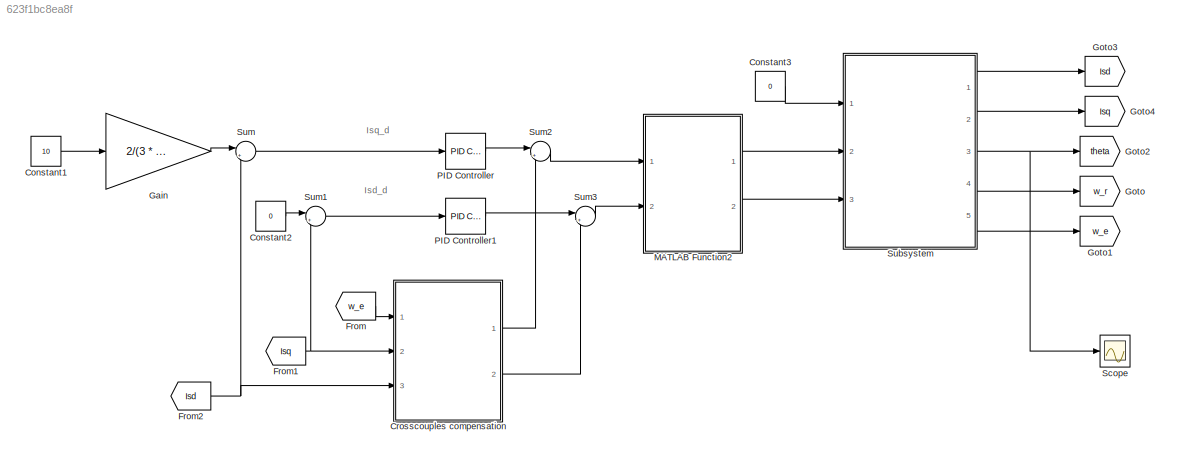
MODEL slx_623f1bc8ea8f
KIND model
CONFIG AbsTol = auto
CONFIG EnableMultiTasking = off
CONFIG FixedStep = auto
CONFIG MaxStep = auto
CONFIG MinStep = auto
CONFIG RelTol = 1e-3
CONFIG SampleTimeConstraint = Unconstrained
CONFIG SolverName = VariableStepAuto
CONFIG StartTime = 0.0
CONFIG StopTime = 100
BLOCK [Constant] Constant1
  Value = 10
BLOCK [Constant] Constant2
  Value = 0
BLOCK [Constant] Constant3
  Value = 0
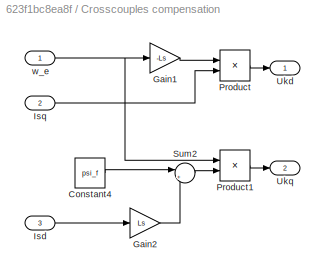
BLOCK [SubSystem] Crosscouples compensation
  Ports = [3, 2]
  RequestExecContextInheritance = off
BLOCK [Constant] Crosscouples compensation/Constant4
  Value = psi_f
BLOCK [Gain] Crosscouples compensation/Gain1
  Gain = -Ls
BLOCK [Gain] Crosscouples compensation/Gain2
  Gain = Ls
BLOCK [Inport] Crosscouples compensation/Isd
  Port = 3
BLOCK [Inport] Crosscouples compensation/Isq
  Port = 2
BLOCK [Product] Crosscouples compensation/Product
  Ports = [2, 1]
BLOCK [Product] Crosscouples compensation/Product1
  Ports = [2, 1]
BLOCK [Sum] Crosscouples compensation/Sum2
  Inputs = |++
  Ports = [2, 1]
BLOCK [Outport] Crosscouples compensation/Ukd
BLOCK [Outport] Crosscouples compensation/Ukq
  Port = 2
BLOCK [Inport] Crosscouples compensation/w_e
BLOCK [From] From
  GotoTag = w_e
BLOCK [From] From1
  GotoTag = Isq
BLOCK [From] From2
  GotoTag = Isd
BLOCK [Gain] Gain
  Gain = 2/(3 * Z * psi_f)
BLOCK [Goto] Goto
  GotoTag = w_r
BLOCK [Goto] Goto1
  GotoTag = w_e
BLOCK [Goto] Goto2
  GotoTag = theta
BLOCK [Goto] Goto3
  GotoTag = Isd
BLOCK [Goto] Goto4
  GotoTag = Isq
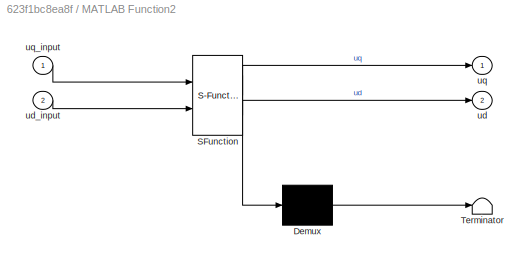
BLOCK [SubSystem] MATLAB Function2
  ErrorFcn = Stateflow.Translate.translate
  PermitHierarchicalResolution = ExplicitOnly
  Ports = [2, 2]
  RequestExecContextInheritance = off
  SFBlockType = MATLAB Function
  TreatAsAtomicUnit = on
BLOCK [Demux] MATLAB Function2/ Demux 
  Outputs = 1
  Ports = [1, 1]
BLOCK [S-Function] MATLAB Function2/ SFunction 
  EnableBusSupport = on
  FunctionName = sf_sfun
  Parameters = U_max
  PortCounts = [2 3]
  Ports = [2, 3]
  SFcnIsStateOwnerBlock = off
  SFunctionDeploymentMode = off
  Tag = Stateflow S-Function 3
BLOCK [Terminator] MATLAB Function2/ Terminator 
BLOCK [Outport] MATLAB Function2/ud
  Port = 2
BLOCK [Inport] MATLAB Function2/ud_input
  Port = 2
BLOCK [Outport] MATLAB Function2/uq
BLOCK [Inport] MATLAB Function2/uq_input
BLOCK [Reference] PID Controller  REF=pid_lib/PID Controller
  Ports = [1, 1]
  SourceBlock = pid_lib/PID Controller
  SourceProductBaseCode = SL
  SourceType = PID 1dof
BLOCK [Reference] PID Controller1  REF=pid_lib/PID Controller
  Ports = [1, 1]
  SourceBlock = pid_lib/PID Controller
  SourceProductBaseCode = SL
  SourceType = PID 1dof
BLOCK [Scope] Scope
  Floating = off
  NumInputPorts = 1
  Ports = [1]
  ScopeSpecificationString = Simulink.scopes.TimeScopeBlockCfg('CurrentConfiguration', extmgr.ConfigurationSet(extmgr.Configuration('Core','General UI',true),extmgr.Configuration('Core','Source UI',true),extmgr.Configuration('Sources','WiredSimulink',true,'DataLoggingVariableName','ScopeData4'),extmgr.Configuration('Visuals','Time Domain',true,'SerializedDisplays',{struct('MinYLimReal','-3605.1294','MaxYLimReal','32446.16464'...<+1419ch>
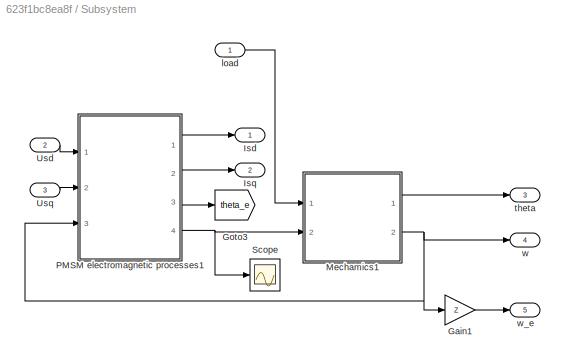
BLOCK [SubSystem] Subsystem
  Ports = [3, 5]
  RequestExecContextInheritance = off
BLOCK [Gain] Subsystem/Gain1
  Gain = Z
BLOCK [Goto] Subsystem/Goto3
  GotoTag = theta_e
BLOCK [Outport] Subsystem/Isd
BLOCK [Outport] Subsystem/Isq
  Port = 2
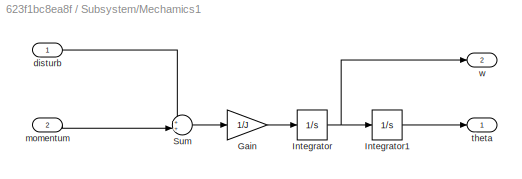
BLOCK [SubSystem] Subsystem/Mechamics1
  Ports = [2, 2]
  RequestExecContextInheritance = off
BLOCK [Gain] Subsystem/Mechamics1/Gain
  Gain = 1/J
BLOCK [Integrator] Subsystem/Mechamics1/Integrator
  Ports = [1, 1]
BLOCK [Integrator] Subsystem/Mechamics1/Integrator1
  Ports = [1, 1]
BLOCK [Sum] Subsystem/Mechamics1/Sum
  Inputs = ++|
  Ports = [2, 1]
BLOCK [Inport] Subsystem/Mechamics1/disturb
BLOCK [Inport] Subsystem/Mechamics1/momentum
  Port = 2
BLOCK [Outport] Subsystem/Mechamics1/theta
  VectorParamsAs1DForOutWhenUnconnected = off
BLOCK [Outport] Subsystem/Mechamics1/w
  Port = 2
  VectorParamsAs1DForOutWhenUnconnected = off
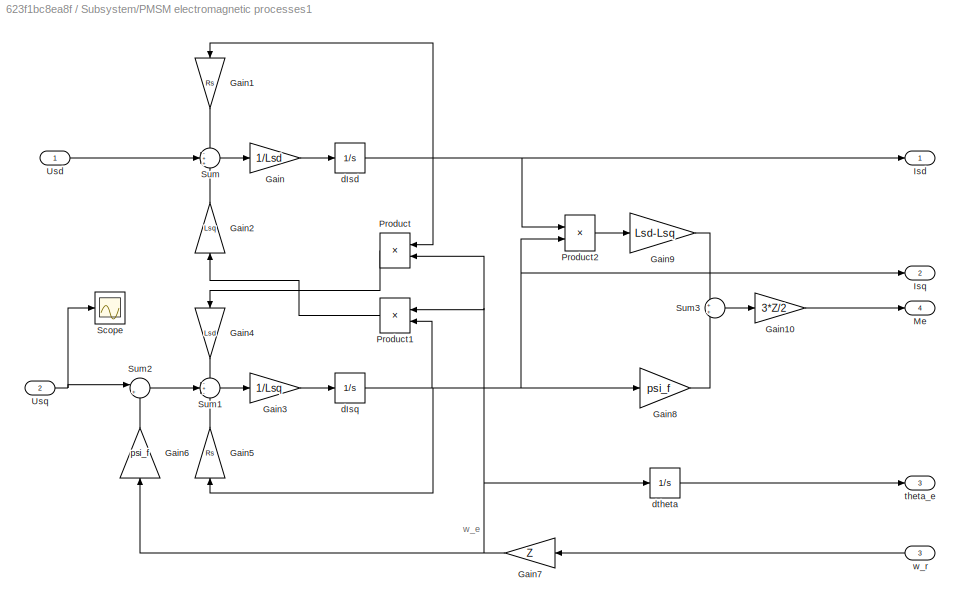
BLOCK [SubSystem] Subsystem/PMSM electromagnetic processes1
  Ports = [3, 4]
  RequestExecContextInheritance = off
BLOCK [Gain] Subsystem/PMSM electromagnetic processes1/Gain
  Gain = 1/Lsd
BLOCK [Gain] Subsystem/PMSM electromagnetic processes1/Gain1
  Gain = Rs
  NameLocation = left
BLOCK [Gain] Subsystem/PMSM electromagnetic processes1/Gain10
  Gain = 3*Z/2
BLOCK [Gain] Subsystem/PMSM electromagnetic processes1/Gain2
  Gain = Lsq
  NameLocation = right
BLOCK [Gain] Subsystem/PMSM electromagnetic processes1/Gain3
  Gain = 1/Lsq
BLOCK [Gain] Subsystem/PMSM electromagnetic processes1/Gain4
  Gain = Lsd
  NameLocation = left
BLOCK [Gain] Subsystem/PMSM electromagnetic processes1/Gain5
  Gain = Rs
  NameLocation = right
BLOCK [Gain] Subsystem/PMSM electromagnetic processes1/Gain6
  Gain = psi_f
  NameLocation = right
BLOCK [Gain] Subsystem/PMSM electromagnetic processes1/Gain7
  Gain = Z
  NameLocation = top
BLOCK [Gain] Subsystem/PMSM electromagnetic processes1/Gain8
  Gain = psi_f
BLOCK [Gain] Subsystem/PMSM electromagnetic processes1/Gain9
  Gain = Lsd-Lsq
BLOCK [Outport] Subsystem/PMSM electromagnetic processes1/Isd
  VectorParamsAs1DForOutWhenUnconnected = off
BLOCK [Outport] Subsystem/PMSM electromagnetic processes1/Isq
  Port = 2
  VectorParamsAs1DForOutWhenUnconnected = off
BLOCK [Outport] Subsystem/PMSM electromagnetic processes1/Me
  Port = 4
  VectorParamsAs1DForOutWhenUnconnected = off
BLOCK [Product] Subsystem/PMSM electromagnetic processes1/Product
  NameLocation = top
  Ports = [2, 1]
BLOCK [Product] Subsystem/PMSM electromagnetic processes1/Product1
  NameLocation = top
  Ports = [2, 1]
BLOCK [Product] Subsystem/PMSM electromagnetic processes1/Product2
  Ports = [2, 1]
BLOCK [Scope] Subsystem/PMSM electromagnetic processes1/Scope
  Floating = off
  NumInputPorts = 1
  Ports = [1]
  ScopeSpecificationString = Simulink.scopes.TimeScopeBlockCfg('CurrentConfiguration', extmgr.ConfigurationSet(extmgr.Configuration('Core','General UI',true),extmgr.Configuration('Core','Source UI',true),extmgr.Configuration('Sources','WiredSimulink',true,'DataLoggingVariableName','ScopeData9'),extmgr.Configuration('Visuals','Time Domain',true,'SerializedDisplays',{struct('MinYLimReal','188.67513','MaxYLimReal','388.67513','Y...<+1376ch>
BLOCK [Sum] Subsystem/PMSM electromagnetic processes1/Sum
  Inputs = -++
  Ports = [3, 1]
BLOCK [Sum] Subsystem/PMSM electromagnetic processes1/Sum1
  Inputs = -+-
  Ports = [3, 1]
BLOCK [Sum] Subsystem/PMSM electromagnetic processes1/Sum2
  Inputs = |+-
  Ports = [2, 1]
BLOCK [Sum] Subsystem/PMSM electromagnetic processes1/Sum3
  Ports = [2, 1]
BLOCK [Inport] Subsystem/PMSM electromagnetic processes1/Usd
BLOCK [Inport] Subsystem/PMSM electromagnetic processes1/Usq
  Port = 2
BLOCK [Integrator] Subsystem/PMSM electromagnetic processes1/dIsd
  Ports = [1, 1]
BLOCK [Integrator] Subsystem/PMSM electromagnetic processes1/dIsq
  Ports = [1, 1]
BLOCK [Integrator] Subsystem/PMSM electromagnetic processes1/dtheta
  Ports = [1, 1]
BLOCK [Outport] Subsystem/PMSM electromagnetic processes1/theta_e
  Port = 3
  VectorParamsAs1DForOutWhenUnconnected = off
BLOCK [Inport] Subsystem/PMSM electromagnetic processes1/w_r
  Port = 3
BLOCK [Scope] Subsystem/Scope
  Floating = off
  NumInputPorts = 1
  Ports = [1]
  ScopeSpecificationString = Simulink.scopes.TimeScopeBlockCfg('CurrentConfiguration', extmgr.ConfigurationSet(extmgr.Configuration('Core','General UI',true),extmgr.Configuration('Core','Source UI',true),extmgr.Configuration('Sources','WiredSimulink',true,'DataLoggingVariableName','ScopeData8'),extmgr.Configuration('Visuals','Time Domain',true,'SerializedDisplays',{struct('MinYLimReal','-6.75343','MaxYLimReal','22.87083','YLa...<+1421ch>
BLOCK [Inport] Subsystem/Usd
  Port = 2
BLOCK [Inport] Subsystem/Usq
  Port = 3
BLOCK [Inport] Subsystem/load
BLOCK [Outport] Subsystem/theta
  Port = 3
BLOCK [Outport] Subsystem/w
  Port = 4
BLOCK [Outport] Subsystem/w_e
  Port = 5
BLOCK [Sum] Sum
  Inputs = |+-
  Ports = [2, 1]
BLOCK [Sum] Sum1
  Inputs = |+-
  Ports = [2, 1]
BLOCK [Sum] Sum2
  Inputs = |++
  Ports = [2, 1]
BLOCK [Sum] Sum3
  Inputs = |++
  Ports = [2, 1]
ANNOTATION (root): Isd_d
ANNOTATION (root): Isq_d
ANNOTATION Subsystem/PMSM electromagnetic processes1: w_e
LINE Constant1:1 -> Gain:1
LINE Constant2:1 -> Sum1:1
LINE Constant3:1 -> Subsystem:1
LINE Crosscouples compensation/Constant4:1 -> Crosscouples compensation/Sum2:1
LINE Crosscouples compensation/Gain1:1 -> Crosscouples compensation/Product:1
LINE Crosscouples compensation/Gain2:1 -> Crosscouples compensation/Sum2:2
LINE Crosscouples compensation/Isd:1 -> Crosscouples compensation/Gain2:1
LINE Crosscouples compensation/Isq:1 -> Crosscouples compensation/Product:2
LINE Crosscouples compensation/Product1:1 -> Crosscouples compensation/Ukq:1
LINE Crosscouples compensation/Product:1 -> Crosscouples compensation/Ukd:1
LINE Crosscouples compensation/Sum2:1 -> Crosscouples compensation/Product1:2
NET Crosscouples compensation/w_e:1 -> Crosscouples compensation/Gain1:1, Crosscouples compensation/Product1:1
LINE Crosscouples compensation:1 -> Sum2:2
LINE Crosscouples compensation:2 -> Sum3:2
NET From1:1 -> Crosscouples compensation:2, Sum1:2
NET From2:1 -> Crosscouples compensation:3, Sum:2
LINE From:1 -> Crosscouples compensation:1
LINE Gain:1 -> Sum:1
LINE MATLAB Function2:1 -> Subsystem:2
LINE MATLAB Function2:2 -> Subsystem:3
LINE PID Controller1:1 -> Sum3:1
LINE PID Controller:1 -> Sum2:1
LINE Subsystem/Gain1:1 -> Subsystem/w_e:1
LINE Subsystem/Mechamics1/Gain:1 -> Subsystem/Mechamics1/Integrator:1
LINE Subsystem/Mechamics1/Integrator1:1 -> Subsystem/Mechamics1/theta:1
NET Subsystem/Mechamics1/Integrator:1 -> Subsystem/Mechamics1/Integrator1:1, Subsystem/Mechamics1/w:1
LINE Subsystem/Mechamics1/Sum:1 -> Subsystem/Mechamics1/Gain:1
LINE Subsystem/Mechamics1/disturb:1 -> Subsystem/Mechamics1/Sum:1
LINE Subsystem/Mechamics1/momentum:1 -> Subsystem/Mechamics1/Sum:2
LINE Subsystem/Mechamics1:1 -> Subsystem/theta:1
NET Subsystem/Mechamics1:2 -> Subsystem/Gain1:1, Subsystem/PMSM electromagnetic processes1:3, Subsystem/w:1
LINE Subsystem/PMSM electromagnetic processes1/Gain10:1 -> Subsystem/PMSM electromagnetic processes1/Me:1
LINE Subsystem/PMSM electromagnetic processes1/Gain1:1 -> Subsystem/PMSM electromagnetic processes1/Sum:1
LINE Subsystem/PMSM electromagnetic processes1/Gain2:1 -> Subsystem/PMSM electromagnetic processes1/Sum:3
LINE Subsystem/PMSM electromagnetic processes1/Gain3:1 -> Subsystem/PMSM electromagnetic processes1/dIsq:1
LINE Subsystem/PMSM electromagnetic processes1/Gain4:1 -> Subsystem/PMSM electromagnetic processes1/Sum1:1
LINE Subsystem/PMSM electromagnetic processes1/Gain5:1 -> Subsystem/PMSM electromagnetic processes1/Sum1:3
LINE Subsystem/PMSM electromagnetic processes1/Gain6:1 -> Subsystem/PMSM electromagnetic processes1/Sum2:2
NET Subsystem/PMSM electromagnetic processes1/Gain7:1 -> Subsystem/PMSM electromagnetic processes1/Gain6:1, Subsystem/PMSM electromagnetic processes1/Product1:1, Subsystem/PMSM electromagnetic processes1/Product:2, Subsystem/PMSM electromagnetic processes1/dtheta:1
LINE Subsystem/PMSM electromagnetic processes1/Gain8:1 -> Subsystem/PMSM electromagnetic processes1/Sum3:2
LINE Subsystem/PMSM electromagnetic processes1/Gain9:1 -> Subsystem/PMSM electromagnetic processes1/Sum3:1
LINE Subsystem/PMSM electromagnetic processes1/Gain:1 -> Subsystem/PMSM electromagnetic processes1/dIsd:1
LINE Subsystem/PMSM electromagnetic processes1/Product1:1 -> Subsystem/PMSM electromagnetic processes1/Gain2:1
LINE Subsystem/PMSM electromagnetic processes1/Product2:1 -> Subsystem/PMSM electromagnetic processes1/Gain9:1
LINE Subsystem/PMSM electromagnetic processes1/Product:1 -> Subsystem/PMSM electromagnetic processes1/Gain4:1
LINE Subsystem/PMSM electromagnetic processes1/Sum1:1 -> Subsystem/PMSM electromagnetic processes1/Gain3:1
LINE Subsystem/PMSM electromagnetic processes1/Sum2:1 -> Subsystem/PMSM electromagnetic processes1/Sum1:2
LINE Subsystem/PMSM electromagnetic processes1/Sum3:1 -> Subsystem/PMSM electromagnetic processes1/Gain10:1
LINE Subsystem/PMSM electromagnetic processes1/Sum:1 -> Subsystem/PMSM electromagnetic processes1/Gain:1
LINE Subsystem/PMSM electromagnetic processes1/Usd:1 -> Subsystem/PMSM electromagnetic processes1/Sum:2
NET Subsystem/PMSM electromagnetic processes1/Usq:1 -> Subsystem/PMSM electromagnetic processes1/Scope:1, Subsystem/PMSM electromagnetic processes1/Sum2:1
NET Subsystem/PMSM electromagnetic processes1/dIsd:1 -> Subsystem/PMSM electromagnetic processes1/Gain1:1, Subsystem/PMSM electromagnetic processes1/Isd:1, Subsystem/PMSM electromagnetic processes1/Product2:1, Subsystem/PMSM electromagnetic processes1/Product:1
NET Subsystem/PMSM electromagnetic processes1/dIsq:1 -> Subsystem/PMSM electromagnetic processes1/Gain5:1, Subsystem/PMSM electromagnetic processes1/Gain8:1, Subsystem/PMSM electromagnetic processes1/Isq:1, Subsystem/PMSM electromagnetic processes1/Product1:2, Subsystem/PMSM electromagnetic processes1/Product2:2
LINE Subsystem/PMSM electromagnetic processes1/dtheta:1 -> Subsystem/PMSM electromagnetic processes1/theta_e:1
LINE Subsystem/PMSM electromagnetic processes1/w_r:1 -> Subsystem/PMSM electromagnetic processes1/Gain7:1
LINE Subsystem/PMSM electromagnetic processes1:1 -> Subsystem/Isd:1
LINE Subsystem/PMSM electromagnetic processes1:2 -> Subsystem/Isq:1
LINE Subsystem/PMSM electromagnetic processes1:3 -> Subsystem/Goto3:1
NET Subsystem/PMSM electromagnetic processes1:4 -> Subsystem/Mechamics1:2, Subsystem/Scope:1
LINE Subsystem/Usd:1 -> Subsystem/PMSM electromagnetic processes1:1
LINE Subsystem/Usq:1 -> Subsystem/PMSM electromagnetic processes1:2
LINE Subsystem/load:1 -> Subsystem/Mechamics1:1
LINE Subsystem:1 -> Goto3:1
LINE Subsystem:2 -> Goto4:1
NET Subsystem:3 -> Goto2:1, Scope:1
LINE Subsystem:4 -> Goto:1
LINE Subsystem:5 -> Goto1:1
LINE Sum1:1 -> PID Controller1:1
LINE Sum2:1 -> MATLAB Function2:1
LINE Sum3:1 -> MATLAB Function2:2
LINE Sum:1 -> PID Controller:1
note: NET lines group one-source signal fan-out (src -> all destinations, sorted); 1:1 wires keep LINE
CHART MATLAB Function2 states=1 transitions=1
  STATE_LABEL 'eML_blk_kernel()'
  STATE_LABEL 'SCRIPT:\nfunction [uq, ud] = limit_U(uq_input, ud_input, U_max)\nu_s_max = U_max / sqrt(3);\nud = U_max / sqrt(3);\nuq = sqrt(u_s_max^2 - ud^2);\n'
CHART  states=0 transitions=0
